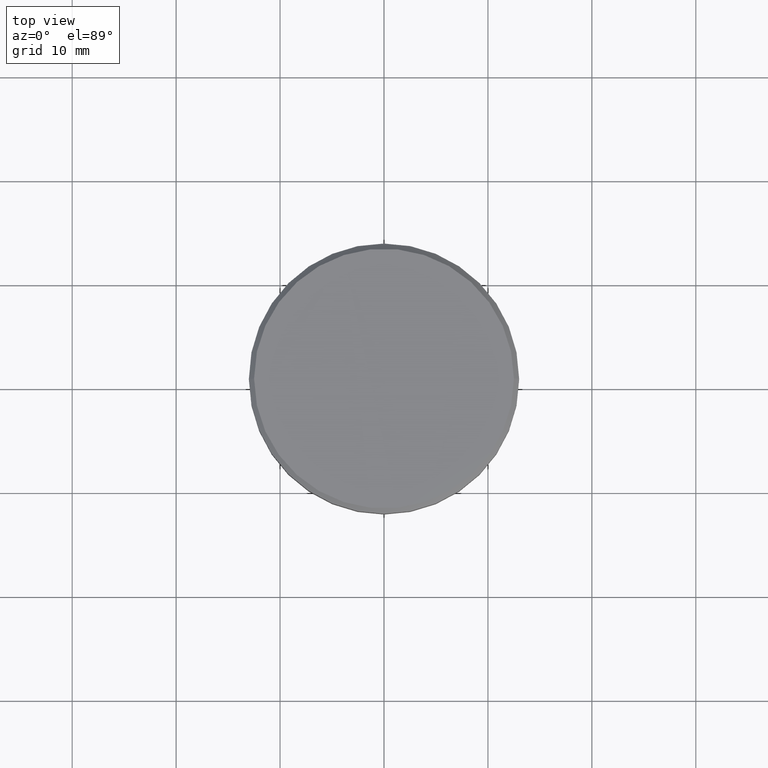
[diagram: clean part render]
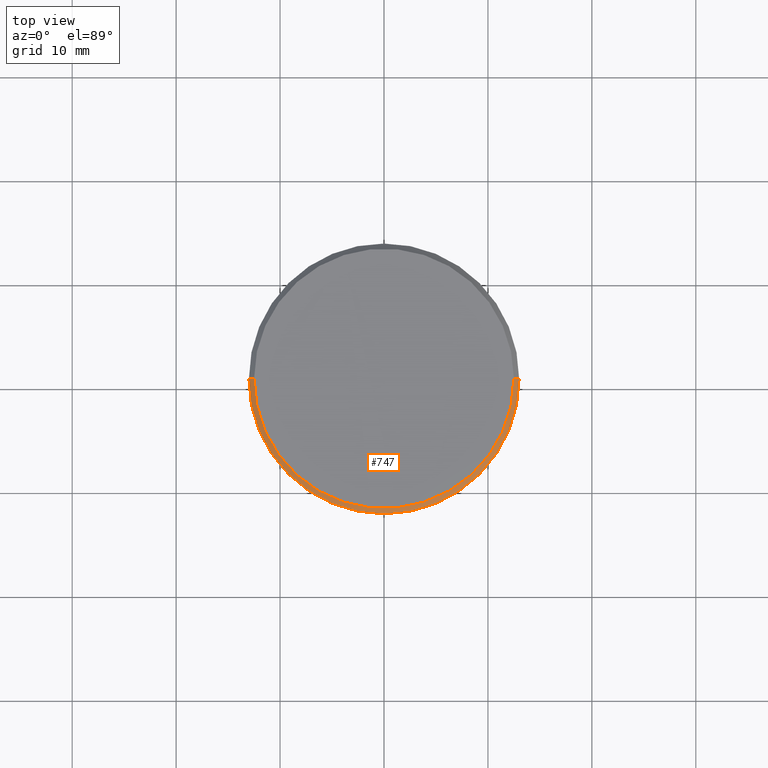
[diagram: same view with one face highlighted and labeled with its STEP entity id]
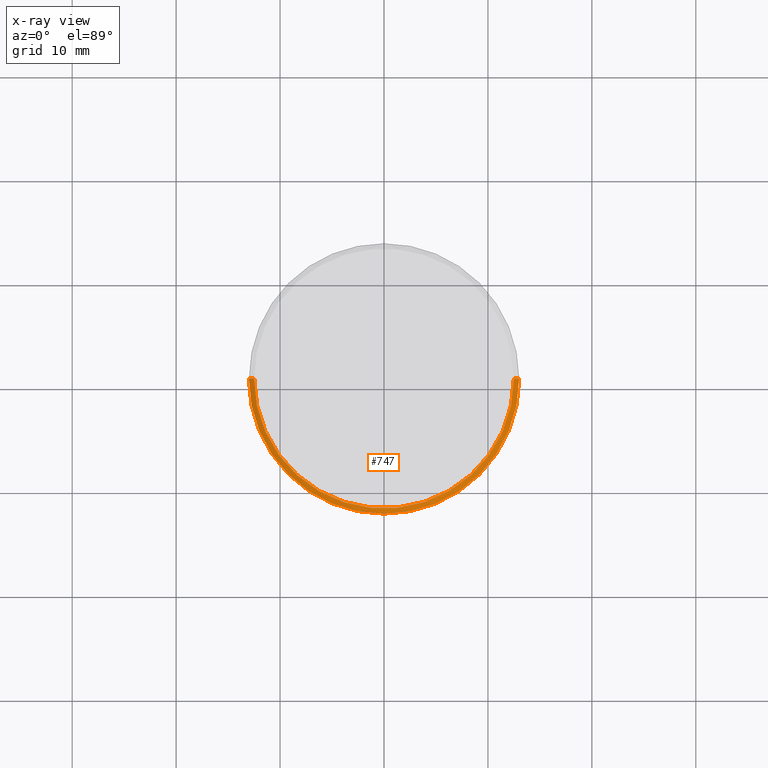
[diagram: x-ray of the same camera — body ghosted, the highlighted face saturated]
A machine part, top view. The second image highlights one B-rep face of the part: STEP entity #747.
The next image is the same camera in x-ray: the body ghosted, the highlighted face saturated — about 0% of this face is hidden behind the body in this view.
In plain terms, the highlighted conical surface has half-angle 45 deg.
Its self-contained STEP definition (entity closure, byte-faithful):
#13 = DIRECTION ( 'NONE',  ( 0.000000000000000000, 0.000000000000000000, -1.000000000000000000 ) ) ;
#22 = DIRECTION ( 'NONE',  ( -0.000000000000000000, -0.000000000000000000, 1.000000000000000000 ) ) ;
#30 = CARTESIAN_POINT ( 'NONE',  ( 0.000000000000000000, 0.000000000000000000, 0.000000000000000000 ) ) ;
#57 = VERTEX_POINT ( 'NONE', #466 ) ;
#65 = CARTESIAN_POINT ( 'NONE',  ( -12.50000000000001776, 0.000000000000000000, 0.000000000000000000 ) ) ;
#71 = DIRECTION ( 'NONE',  ( 1.000000000000000000, 0.000000000000000000, 0.000000000000000000 ) ) ;
#113 = CARTESIAN_POINT ( 'NONE',  ( -12.50000000000001776, 0.000000000000000000, 0.000000000000000000 ) ) ;
#123 = ORIENTED_EDGE ( 'NONE', *, *, #158, .F. ) ;
#139 = CIRCLE ( 'NONE', #804, 13.00000000000000000 ) ;
#149 = VERTEX_POINT ( 'NONE', #65 ) ;
#158 = EDGE_CURVE ( 'NONE', #1076, #956, #139, .T. ) ;
#212 = CARTESIAN_POINT ( 'NONE',  ( -13.00000000000000000, 1.592040838891559095E-15, -0.4999999999999865663 ) ) ;
#228 = ORIENTED_EDGE ( 'NONE', *, *, #525, .F. ) ;
#232 = CARTESIAN_POINT ( 'NONE',  ( 13.00000000000000000, 0.000000000000000000, -0.4999999999999865663 ) ) ;
#272 = VECTOR ( 'NONE', #1041, 999.9999999999998863 ) ;
#300 = ORIENTED_EDGE ( 'NONE', *, *, #430, .T. ) ;
#327 = VECTOR ( 'NONE', #1136, 999.9999999999998863 ) ;
#329 = AXIS2_PLACEMENT_3D ( 'NONE', #30, #22, #399 ) ;
#399 = DIRECTION ( 'NONE',  ( 1.000000000000000000, 0.000000000000000000, 0.000000000000000000 ) ) ;
#403 = LINE ( 'NONE', #771, #327 ) ;
#430 = EDGE_CURVE ( 'NONE', #149, #956, #1120, .T. ) ;
#437 = DIRECTION ( 'NONE',  ( 0.000000000000000000, 0.000000000000000000, -1.000000000000000000 ) ) ;
#466 = CARTESIAN_POINT ( 'NONE',  ( 12.50000000000001776, 1.561424668912876492E-15, 0.000000000000000000 ) ) ;
#525 = EDGE_CURVE ( 'NONE', #57, #1076, #403, .T. ) ;
#547 = DIRECTION ( 'NONE',  ( -1.000000000000000000, 0.000000000000000000, 0.000000000000000000 ) ) ;
#552 = ORIENTED_EDGE ( 'NONE', *, *, #940, .F. ) ;
#625 = CARTESIAN_POINT ( 'NONE',  ( 0.000000000000000000, 0.000000000000000000, 0.000000000000000000 ) ) ;
#704 = CARTESIAN_POINT ( 'NONE',  ( 0.000000000000000000, 0.000000000000000000, -0.4999999999999865663 ) ) ;
#714 = CONICAL_SURFACE ( 'NONE', #1155, 12.50000000000001776, 0.7853981633974430610 ) ;
#719 = EDGE_LOOP ( 'NONE', ( #228, #552, #300, #123 ) ) ;
#747 = ADVANCED_FACE ( 'NONE', ( #816 ), #714, .T. ) ;
#771 = CARTESIAN_POINT ( 'NONE',  ( 12.50000000000001776, 1.530808498934193691E-15, 0.000000000000000000 ) ) ;
#804 = AXIS2_PLACEMENT_3D ( 'NONE', #704, #437, #71 ) ;
#816 = FACE_OUTER_BOUND ( 'NONE', #719, .T. ) ;
#940 = EDGE_CURVE ( 'NONE', #149, #57, #1049, .T. ) ;
#956 = VERTEX_POINT ( 'NONE', #212 ) ;
#1041 = DIRECTION ( 'NONE',  ( -0.7071067811865439090, 0.000000000000000000, -0.7071067811865512365 ) ) ;
#1049 = CIRCLE ( 'NONE', #329, 12.50000000000001776 ) ;
#1076 = VERTEX_POINT ( 'NONE', #232 ) ;
#1120 = LINE ( 'NONE', #113, #272 ) ;
#1136 = DIRECTION ( 'NONE',  ( 0.7071067811865439090, 8.659560562354888485E-17, -0.7071067811865512365 ) ) ;
#1155 = AXIS2_PLACEMENT_3D ( 'NONE', #625, #13, #547 ) ;